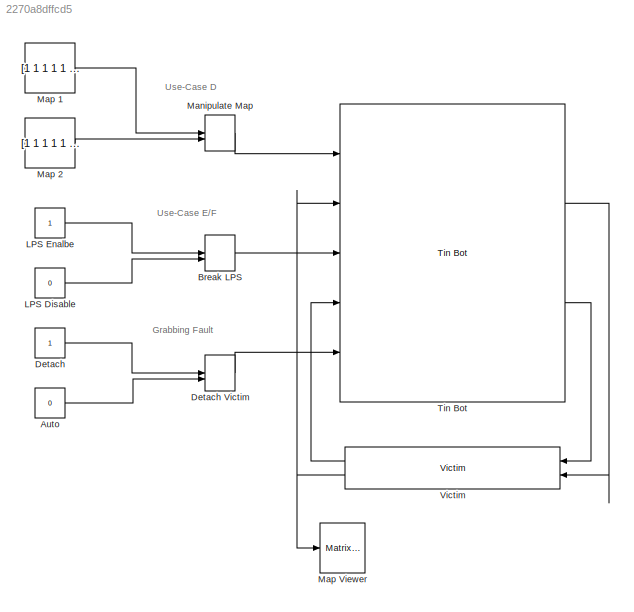
MODEL slx_2270a8dffcd5
KIND model
CONFIG AbsTol = auto
CONFIG FixedStep = auto
CONFIG MaxStep = 0.001
CONFIG MinStep = auto
CONFIG RelTol = 1e-3
CONFIG SampleTimeConstraint = Unconstrained
CONFIG Solver = FixedStepAuto
CONFIG SolverMode = Auto
CONFIG SolverName = FixedStepAuto
CONFIG StartTime = 0.0
CONFIG StopTime = inf
BLOCK [Constant] Auto
  Value = 0
BLOCK [ManualSwitch] Break LPS
BLOCK [Constant] Detach
BLOCK [ManualSwitch] Detach Victim
  CurrentSetting = 0
BLOCK [Constant] LPS Disable
  Value = 0
BLOCK [Constant] LPS Enalbe
BLOCK [ManualSwitch] Manipulate Map
BLOCK [Constant] Map 1
  Value = [1 1 1 1 1 1 1 1 1 1 1 1 1 1 1 1 1 1 1 1 1 1 1 1 1 1 1 1 1 1 1 1 1 1 1 1 1 1 1 1 1 1 1 1 1 1 1 1 1 1 1 1 1 1 1 1 1 1 1 1 1 1 1 1 1 1 1 1 1 1 1 1 1 1 1 1 1 1 1 1 1 1 1 1 1 1 1 1 1 1 1 1 1 1 1 1 1 1 1 1 1 1 1 1 1 1 1 1 1 1 1 1 1 1 1 1 1 1 1 1 1 1 1 1 1 1 1 1 1 1 1 1 1 1 1 1 1 1 1 1 1 1 1 1 1 1 1 1 1 1 1 1 1 1 1 1 1 1 1 1 1 1 1 1 1 1 1 1 1 1 1 1 1 1 1 1 1 1 1 1 1 1 1 1 1 1 1 1 1 1 1 1 1 1 1 1 1 1 1 1...<+79601ch>
BLOCK [Constant] Map 2
  Value = [1 1 1 1 1 1 1 1 1 1 1 1 1 1 1 1 1 1 1 1 1 1 1 1 1 1 1 1 1 1 1 1 1 1 1 1 1 1 1 1 1 1 1 1 1 1 1 1 1 1 1 1 1 1 1 1 1 1 1 1 1 1 1 1 1 1 1 1 1 1 1 1 1 1 1 1 1 1 1 1 1 1 1 1 1 1 1 1 1 1 1 1 1 1 1 1 1 1 1 1 1 1 1 1 1 1 1 1 1 1 1 1 1 1 1 1 1 1 1 1 1 1 1 1 1 1 1 1 1 1 1 1 1 1 1 1 1 1 1 1 1 1 1 1 1 1 1 1 1 1 1 1 1 1 1 1 1 1 1 1 1 1 1 1 1 1 1 1 1 1 1 1 1 1 1 1 1 1 1 1 1 1 1 1 1 1 1 1 1 1 1 1 1 1 1 1 1 1 1 1...<+79601ch>
BLOCK [Reference] Map Viewer  REF=dspsnks4/Matrix
Viewer
  Ports = [1]
  SourceBlock = dspsnks4/Matrix\nViewer
  SourceType = Matrix Viewer
BLOCK [Reference] Tin Bot  REF=tinbot/Tin Bot  (lib defined in slx_3c5c153e9850, slx_5b2796442827, +1 more)
  Ports = [5, 2]
  SourceBlock = tinbot/Tin Bot
BLOCK [Reference] Victim  REF=tinbot/Victim  (lib defined in slx_3c5c153e9850, slx_5b2796442827, +1 more)
  Ports = [2, 2]
  SourceBlock = tinbot/Victim
ANNOTATION (root): Grabbing Fault
ANNOTATION (root): Use-Case D
ANNOTATION (root): Use-Case E/F
LINE Auto:1 -> Detach Victim:2
LINE Break LPS:1 -> Tin Bot:3
LINE Detach Victim:1 -> Tin Bot:5
LINE Detach:1 -> Detach Victim:1
LINE LPS Disable:1 -> Break LPS:2
LINE LPS Enalbe:1 -> Break LPS:1
LINE Manipulate Map:1 -> Tin Bot:1
LINE Map 1:1 -> Manipulate Map:1
LINE Map 2:1 -> Manipulate Map:2
LINE Tin Bot:1 -> Victim:2
LINE Tin Bot:2 -> Victim:1
LINE Victim:1 -> Tin Bot:4
NET Victim:2 -> Map Viewer:1, Tin Bot:2
note: NET lines group one-source signal fan-out (src -> all destinations, sorted); 1:1 wires keep LINE
